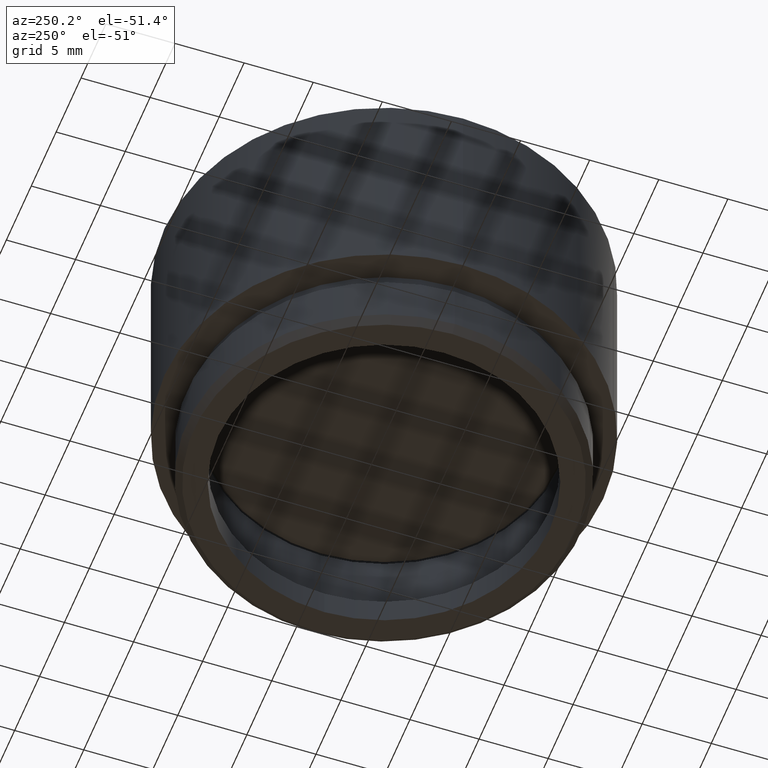
[diagram: clean part render]
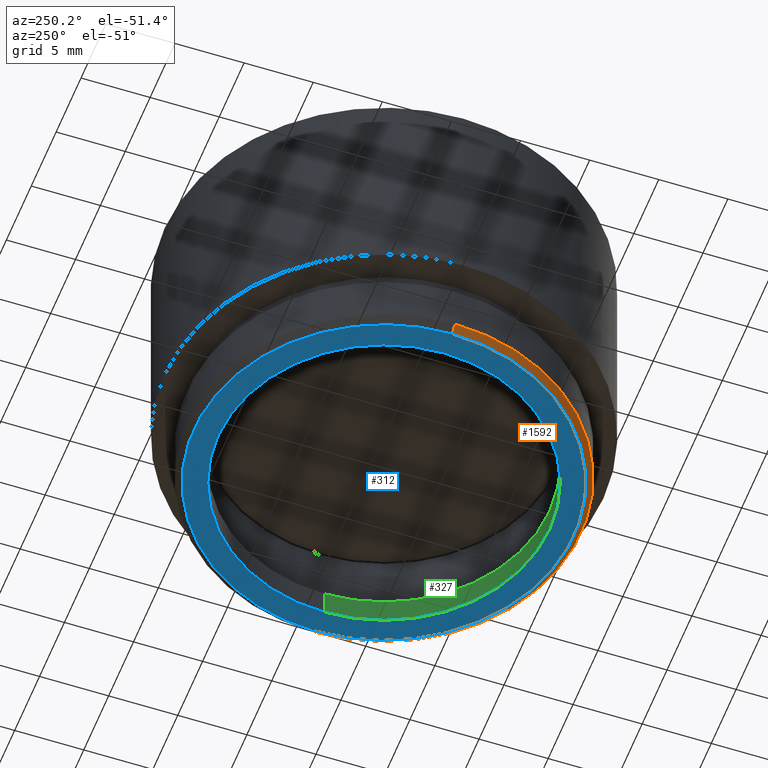
[diagram: same view with three faces highlighted in distinct colors, each labeled with its STEP entity id]
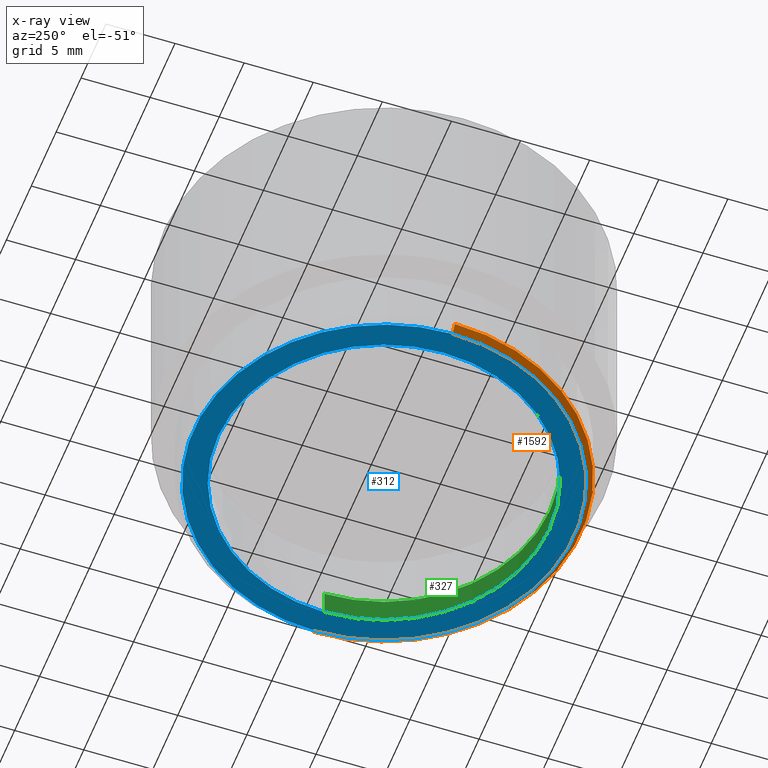
[diagram: x-ray of the same camera — body ghosted, the three highlighted faces saturated]
A machine part, auxiliary view with three faces highlighted in distinct colors.
The next image is the same camera in x-ray (body ghosted, the three faces saturated) — at least one of them is partly hidden behind the body in this view.
Their STEP definitions:

[orange] entity #1592 — the highlighted conical surface has half-angle 45 deg.
#43 = AXIS2_PLACEMENT_3D ( 'NONE', #1466, #164, #831 ) ;
#86 = EDGE_CURVE ( 'NONE', #1323, #310, #1456, .T. ) ;
#112 = CARTESIAN_POINT ( 'NONE',  ( 0.000000000000000000, 0.000000000000000000, 0.000000000000000000 ) ) ;
#130 = ORIENTED_EDGE ( 'NONE', *, *, #367, .F. ) ;
#164 = DIRECTION ( 'NONE',  ( -0.000000000000000000, -0.000000000000000000, -1.000000000000000000 ) ) ;
#193 = CARTESIAN_POINT ( 'NONE',  ( -13.74999999999999112, 1.714505518806294046E-15, 0.000000000000000000 ) ) ;
#200 = CIRCLE ( 'NONE', #43, 13.74999999999999112 ) ;
#236 = EDGE_CURVE ( 'NONE', #1004, #696, #1646, .T. ) ;
#254 = CARTESIAN_POINT ( 'NONE',  ( 14.25000000000000000, 1.745121688784978228E-15, 0.5000000000000038858 ) ) ;
#310 = VERTEX_POINT ( 'NONE', #254 ) ;
#320 = CARTESIAN_POINT ( 'NONE',  ( 13.74999999999999112, 0.000000000000000000, 0.000000000000000000 ) ) ;
#367 = EDGE_CURVE ( 'NONE', #696, #310, #420, .T. ) ;
#420 = CIRCLE ( 'NONE', #446, 14.25000000000000000 ) ;
#446 = AXIS2_PLACEMENT_3D ( 'NONE', #1171, #911, #1331 ) ;
#669 = AXIS2_PLACEMENT_3D ( 'NONE', #112, #1033, #1176 ) ;
#696 = VERTEX_POINT ( 'NONE', #1138 ) ;
#712 = CARTESIAN_POINT ( 'NONE',  ( 13.74999999999999112, 0.000000000000000000, 0.000000000000000000 ) ) ;
#791 = EDGE_LOOP ( 'NONE', ( #898, #813, #1662, #130 ) ) ;
#792 = VECTOR ( 'NONE', #968, 1000.000000000000000 ) ;
#813 = ORIENTED_EDGE ( 'NONE', *, *, #1112, .F. ) ;
#831 = DIRECTION ( 'NONE',  ( 1.000000000000000000, 0.000000000000000000, 0.000000000000000000 ) ) ;
#898 = ORIENTED_EDGE ( 'NONE', *, *, #236, .F. ) ;
#911 = DIRECTION ( 'NONE',  ( 0.000000000000000000, 0.000000000000000000, 1.000000000000000000 ) ) ;
#968 = DIRECTION ( 'NONE',  ( 0.7071067811865512365, 0.000000000000000000, 0.7071067811865439090 ) ) ;
#1004 = VERTEX_POINT ( 'NONE', #193 ) ;
#1033 = DIRECTION ( 'NONE',  ( 0.000000000000000000, 0.000000000000000000, 1.000000000000000000 ) ) ;
#1112 = EDGE_CURVE ( 'NONE', #1323, #1004, #200, .T. ) ;
#1138 = CARTESIAN_POINT ( 'NONE',  ( -14.25000000000000000, 0.000000000000000000, 0.5000000000000038858 ) ) ;
#1171 = CARTESIAN_POINT ( 'NONE',  ( 0.000000000000000000, 0.000000000000000000, 0.5000000000000038858 ) ) ;
#1176 = DIRECTION ( 'NONE',  ( 1.000000000000000000, 0.000000000000000000, 0.000000000000000000 ) ) ;
#1179 = CONICAL_SURFACE ( 'NONE', #669, 13.74999999999999112, 0.7853981633974533860 ) ;
#1294 = FACE_OUTER_BOUND ( 'NONE', #791, .T. ) ;
#1323 = VERTEX_POINT ( 'NONE', #712 ) ;
#1331 = DIRECTION ( 'NONE',  ( 1.000000000000000000, 0.000000000000000000, 0.000000000000000000 ) ) ;
#1456 = LINE ( 'NONE', #320, #792 ) ;
#1466 = CARTESIAN_POINT ( 'NONE',  ( 0.000000000000000000, 0.000000000000000000, 0.000000000000000000 ) ) ;
#1524 = DIRECTION ( 'NONE',  ( -0.7071067811865512365, 8.659560562354978464E-17, 0.7071067811865439090 ) ) ;
#1592 = ADVANCED_FACE ( 'NONE', ( #1294 ), #1179, .T. ) ;
#1631 = CARTESIAN_POINT ( 'NONE',  ( -13.74999999999999112, 1.683889348827609668E-15, 0.000000000000000000 ) ) ;
#1646 = LINE ( 'NONE', #1631, #1668 ) ;
#1662 = ORIENTED_EDGE ( 'NONE', *, *, #86, .T. ) ;
#1668 = VECTOR ( 'NONE', #1524, 1000.000000000000000 ) ;

[blue] entity #312 — the highlighted planar face has unit normal (0, 0, 1).
#43 = AXIS2_PLACEMENT_3D ( 'NONE', #1466, #164, #831 ) ;
#118 = DIRECTION ( 'NONE',  ( 0.000000000000000000, 0.000000000000000000, 1.000000000000000000 ) ) ;
#129 = ORIENTED_EDGE ( 'NONE', *, *, #608, .T. ) ;
#164 = DIRECTION ( 'NONE',  ( -0.000000000000000000, -0.000000000000000000, -1.000000000000000000 ) ) ;
#166 = DIRECTION ( 'NONE',  ( 1.000000000000000000, 0.000000000000000000, 0.000000000000000000 ) ) ;
#178 = VERTEX_POINT ( 'NONE', #305 ) ;
#193 = CARTESIAN_POINT ( 'NONE',  ( -13.74999999999999112, 1.714505518806294046E-15, 0.000000000000000000 ) ) ;
#200 = CIRCLE ( 'NONE', #43, 13.74999999999999112 ) ;
#234 = AXIS2_PLACEMENT_3D ( 'NONE', #278, #118, #1037 ) ;
#278 = CARTESIAN_POINT ( 'NONE',  ( 0.000000000000000000, 0.000000000000000000, 0.000000000000000000 ) ) ;
#305 = CARTESIAN_POINT ( 'NONE',  ( 12.00000000000000178, 1.469576158976824144E-15, 0.000000000000000000 ) ) ;
#312 = ADVANCED_FACE ( 'NONE', ( #403, #1063 ), #1595, .F. ) ;
#317 = ORIENTED_EDGE ( 'NONE', *, *, #588, .T. ) ;
#329 = CIRCLE ( 'NONE', #1502, 12.00000000000000178 ) ;
#403 = FACE_OUTER_BOUND ( 'NONE', #1142, .T. ) ;
#429 = EDGE_LOOP ( 'NONE', ( #129, #942 ) ) ;
#439 = CARTESIAN_POINT ( 'NONE',  ( 0.000000000000000000, 0.000000000000000000, 0.000000000000000000 ) ) ;
#588 = EDGE_CURVE ( 'NONE', #1004, #1323, #1529, .T. ) ;
#608 = EDGE_CURVE ( 'NONE', #963, #178, #329, .T. ) ;
#712 = CARTESIAN_POINT ( 'NONE',  ( 13.74999999999999112, 0.000000000000000000, 0.000000000000000000 ) ) ;
#793 = DIRECTION ( 'NONE',  ( 1.000000000000000000, 0.000000000000000000, 0.000000000000000000 ) ) ;
#802 = CARTESIAN_POINT ( 'NONE',  ( 0.000000000000000000, 0.000000000000000000, 0.000000000000000000 ) ) ;
#831 = DIRECTION ( 'NONE',  ( 1.000000000000000000, 0.000000000000000000, 0.000000000000000000 ) ) ;
#832 = CIRCLE ( 'NONE', #1106, 12.00000000000000178 ) ;
#867 = DIRECTION ( 'NONE',  ( 1.000000000000000000, 0.000000000000000000, 0.000000000000000000 ) ) ;
#942 = ORIENTED_EDGE ( 'NONE', *, *, #1642, .T. ) ;
#951 = DIRECTION ( 'NONE',  ( -0.000000000000000000, -0.000000000000000000, -1.000000000000000000 ) ) ;
#963 = VERTEX_POINT ( 'NONE', #1229 ) ;
#1004 = VERTEX_POINT ( 'NONE', #193 ) ;
#1037 = DIRECTION ( 'NONE',  ( 1.000000000000000000, 0.000000000000000000, -0.000000000000000000 ) ) ;
#1063 = FACE_BOUND ( 'NONE', #429, .T. ) ;
#1106 = AXIS2_PLACEMENT_3D ( 'NONE', #802, #1196, #793 ) ;
#1112 = EDGE_CURVE ( 'NONE', #1323, #1004, #200, .T. ) ;
#1142 = EDGE_LOOP ( 'NONE', ( #1412, #317 ) ) ;
#1165 = AXIS2_PLACEMENT_3D ( 'NONE', #439, #951, #166 ) ;
#1196 = DIRECTION ( 'NONE',  ( 0.000000000000000000, 0.000000000000000000, 1.000000000000000000 ) ) ;
#1229 = CARTESIAN_POINT ( 'NONE',  ( -12.00000000000000178, 0.000000000000000000, 0.000000000000000000 ) ) ;
#1323 = VERTEX_POINT ( 'NONE', #712 ) ;
#1357 = CARTESIAN_POINT ( 'NONE',  ( 0.000000000000000000, 0.000000000000000000, 0.000000000000000000 ) ) ;
#1400 = DIRECTION ( 'NONE',  ( 0.000000000000000000, 0.000000000000000000, 1.000000000000000000 ) ) ;
#1412 = ORIENTED_EDGE ( 'NONE', *, *, #1112, .T. ) ;
#1466 = CARTESIAN_POINT ( 'NONE',  ( 0.000000000000000000, 0.000000000000000000, 0.000000000000000000 ) ) ;
#1502 = AXIS2_PLACEMENT_3D ( 'NONE', #1357, #1400, #867 ) ;
#1529 = CIRCLE ( 'NONE', #1165, 13.74999999999999112 ) ;
#1595 = PLANE ( 'NONE',  #234 ) ;
#1642 = EDGE_CURVE ( 'NONE', #178, #963, #832, .T. ) ;

[green] entity #327 — the highlighted cylindrical surface (partial cylindrical patch) has radius 12 mm, axis along (-0, -0, -1).
#8 = EDGE_CURVE ( 'NONE', #389, #963, #1225, .T. ) ;
#152 = DIRECTION ( 'NONE',  ( -0.000000000000000000, -0.000000000000000000, -1.000000000000000000 ) ) ;
#178 = VERTEX_POINT ( 'NONE', #305 ) ;
#235 = DIRECTION ( 'NONE',  ( 1.000000000000000000, 0.000000000000000000, 0.000000000000000000 ) ) ;
#259 = DIRECTION ( 'NONE',  ( 0.000000000000000000, 0.000000000000000000, 1.000000000000000000 ) ) ;
#305 = CARTESIAN_POINT ( 'NONE',  ( 12.00000000000000178, 1.469576158976824144E-15, 0.000000000000000000 ) ) ;
#327 = ADVANCED_FACE ( 'NONE', ( #778 ), #1569, .F. ) ;
#329 = CIRCLE ( 'NONE', #1502, 12.00000000000000178 ) ;
#389 = VERTEX_POINT ( 'NONE', #788 ) ;
#395 = CARTESIAN_POINT ( 'NONE',  ( 0.000000000000000000, 0.000000000000000000, 1.999999999999998224 ) ) ;
#418 = ORIENTED_EDGE ( 'NONE', *, *, #1536, .T. ) ;
#437 = EDGE_CURVE ( 'NONE', #1453, #178, #1580, .T. ) ;
#528 = DIRECTION ( 'NONE',  ( -0.000000000000000000, -0.000000000000000000, -1.000000000000000000 ) ) ;
#556 = ORIENTED_EDGE ( 'NONE', *, *, #437, .T. ) ;
#608 = EDGE_CURVE ( 'NONE', #963, #178, #329, .T. ) ;
#739 = VECTOR ( 'NONE', #152, 1000.000000000000000 ) ;
#778 = FACE_OUTER_BOUND ( 'NONE', #1410, .T. ) ;
#788 = CARTESIAN_POINT ( 'NONE',  ( -12.00000000000000178, 0.000000000000000000, 1.999999999999998224 ) ) ;
#867 = DIRECTION ( 'NONE',  ( 1.000000000000000000, 0.000000000000000000, 0.000000000000000000 ) ) ;
#923 = CARTESIAN_POINT ( 'NONE',  ( 0.000000000000000000, 0.000000000000000000, 21.50000000000000000 ) ) ;
#930 = ORIENTED_EDGE ( 'NONE', *, *, #608, .F. ) ;
#947 = CIRCLE ( 'NONE', #965, 12.00000000000000178 ) ;
#955 = CARTESIAN_POINT ( 'NONE',  ( -12.00000000000000178, 0.000000000000000000, 21.50000000000000000 ) ) ;
#963 = VERTEX_POINT ( 'NONE', #1229 ) ;
#965 = AXIS2_PLACEMENT_3D ( 'NONE', #395, #259, #235 ) ;
#1118 = VECTOR ( 'NONE', #1214, 1000.000000000000000 ) ;
#1214 = DIRECTION ( 'NONE',  ( -0.000000000000000000, -0.000000000000000000, -1.000000000000000000 ) ) ;
#1225 = LINE ( 'NONE', #955, #1118 ) ;
#1229 = CARTESIAN_POINT ( 'NONE',  ( -12.00000000000000178, 0.000000000000000000, 0.000000000000000000 ) ) ;
#1231 = ORIENTED_EDGE ( 'NONE', *, *, #8, .F. ) ;
#1357 = CARTESIAN_POINT ( 'NONE',  ( 0.000000000000000000, 0.000000000000000000, 0.000000000000000000 ) ) ;
#1369 = AXIS2_PLACEMENT_3D ( 'NONE', #923, #528, #1561 ) ;
#1400 = DIRECTION ( 'NONE',  ( 0.000000000000000000, 0.000000000000000000, 1.000000000000000000 ) ) ;
#1410 = EDGE_LOOP ( 'NONE', ( #418, #556, #930, #1231 ) ) ;
#1453 = VERTEX_POINT ( 'NONE', #1564 ) ;
#1467 = CARTESIAN_POINT ( 'NONE',  ( 12.00000000000000178, 1.469576158976824144E-15, 21.50000000000000000 ) ) ;
#1502 = AXIS2_PLACEMENT_3D ( 'NONE', #1357, #1400, #867 ) ;
#1536 = EDGE_CURVE ( 'NONE', #389, #1453, #947, .T. ) ;
#1561 = DIRECTION ( 'NONE',  ( -1.000000000000000000, 0.000000000000000000, 0.000000000000000000 ) ) ;
#1564 = CARTESIAN_POINT ( 'NONE',  ( 12.00000000000000178, 1.469576158976824144E-15, 1.999999999999998224 ) ) ;
#1569 = CYLINDRICAL_SURFACE ( 'NONE', #1369, 12.00000000000000178 ) ;
#1580 = LINE ( 'NONE', #1467, #739 ) ;